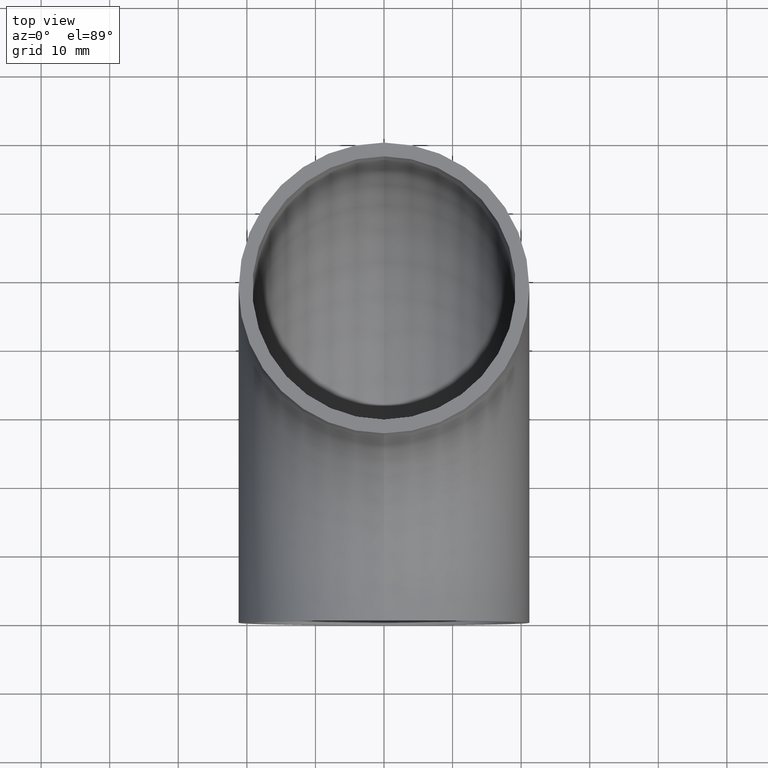
[diagram: clean part render]
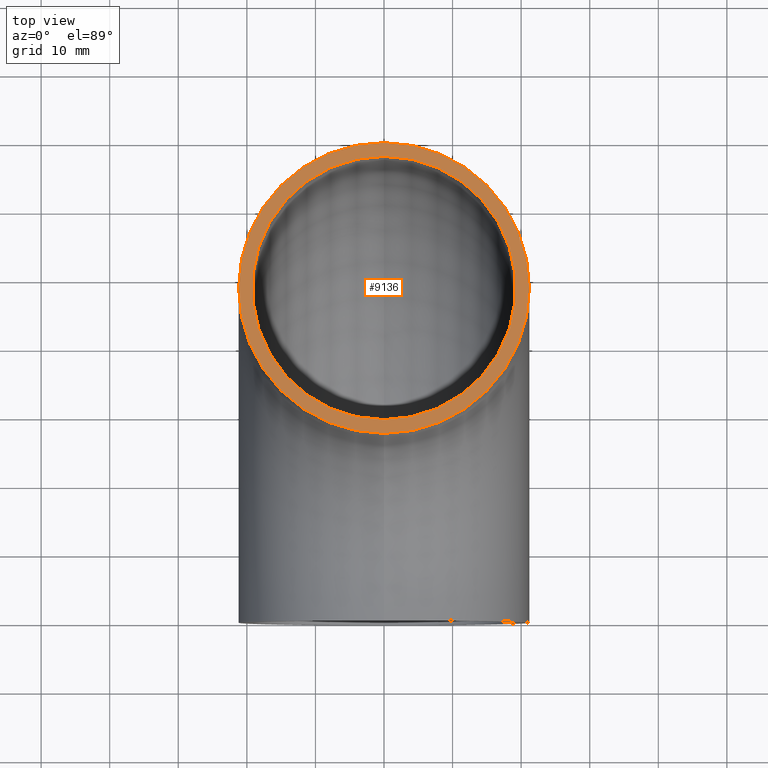
[diagram: same view with one face highlighted and labeled with its STEP entity id]
A machine part, top view. The second image highlights one B-rep face of the part: STEP entity #9136.
In plain terms, the highlighted planar face has unit normal (0, 0, 1).
Its self-contained STEP definition (entity closure, byte-faithful):
#293 = CARTESIAN_POINT ( 'NONE',  ( 0.0000000000000000000, 48.00000000000000000, -2.939152317953647900E-015 ) ) ;
#349 = DIRECTION ( 'NONE',  ( 0.0000000000000000000, -1.000000000000000000, 6.123233995736766000E-017 ) ) ;
#376 = CARTESIAN_POINT ( 'NONE',  ( 0.0000000000000000000, 48.00000000000000000, -2.939152317953647900E-015 ) ) ;
#416 = VERTEX_POINT ( 'NONE', #2622 ) ;
#440 = EDGE_LOOP ( 'NONE', ( #3813, #1794 ) ) ;
#707 = FACE_BOUND ( 'NONE', #11290, .T. ) ;
#1494 = VERTEX_POINT ( 'NONE', #4113 ) ;
#1566 = AXIS2_PLACEMENT_3D ( 'NONE', #293, #9163, #3717 ) ;
#1794 = ORIENTED_EDGE ( 'NONE', *, *, #9662, .T. ) ;
#2234 = AXIS2_PLACEMENT_3D ( 'NONE', #11080, #5670, #349 ) ;
#2401 = CIRCLE ( 'NONE', #10597, 19.20000000000000300 ) ;
#2622 = CARTESIAN_POINT ( 'NONE',  ( 0.0000000000000000000, 26.80000000000000100, -1.641026710857453300E-015 ) ) ;
#2993 = VERTEX_POINT ( 'NONE', #9274 ) ;
#3390 = EDGE_CURVE ( 'NONE', #3609, #1494, #2401, .T. ) ;
#3452 = DIRECTION ( 'NONE',  ( 0.0000000000000000000, -1.000000000000000000, 6.123233995736766000E-017 ) ) ;
#3489 = CARTESIAN_POINT ( 'NONE',  ( 0.0000000000000000000, 48.00000000000000000, -2.939152317953647900E-015 ) ) ;
#3609 = VERTEX_POINT ( 'NONE', #11091 ) ;
#3717 = DIRECTION ( 'NONE',  ( 0.0000000000000000000, -1.000000000000000000, 6.123233995736766000E-017 ) ) ;
#3813 = ORIENTED_EDGE ( 'NONE', *, *, #8654, .T. ) ;
#4069 = DIRECTION ( 'NONE',  ( 0.0000000000000000000, 6.123233995736766000E-017, 1.000000000000000000 ) ) ;
#4113 = CARTESIAN_POINT ( 'NONE',  ( 0.0000000000000000000, 28.80000000000000100, -1.763491390772188500E-015 ) ) ;
#4572 = DIRECTION ( 'NONE',  ( 0.0000000000000000000, -1.000000000000000000, 6.123233995736766000E-017 ) ) ;
#4750 = AXIS2_PLACEMENT_3D ( 'NONE', #376, #4069, #5777 ) ;
#5670 = DIRECTION ( 'NONE',  ( 0.0000000000000000000, 6.123233995736766000E-017, 1.000000000000000000 ) ) ;
#5777 = DIRECTION ( 'NONE',  ( 0.0000000000000000000, -1.000000000000000000, 6.123233995736766000E-017 ) ) ;
#6105 = CIRCLE ( 'NONE', #1566, 21.19999999999999900 ) ;
#6370 = FACE_OUTER_BOUND ( 'NONE', #440, .T. ) ;
#7808 = AXIS2_PLACEMENT_3D ( 'NONE', #8907, #8943, #4572 ) ;
#7859 = DIRECTION ( 'NONE',  ( 0.0000000000000000000, 6.123233995736766000E-017, 1.000000000000000000 ) ) ;
#8654 = EDGE_CURVE ( 'NONE', #416, #2993, #6105, .T. ) ;
#8702 = EDGE_CURVE ( 'NONE', #1494, #3609, #10410, .T. ) ;
#8907 = CARTESIAN_POINT ( 'NONE',  ( 0.0000000000000000000, 48.00000000000000000, -2.939152317953647900E-015 ) ) ;
#8943 = DIRECTION ( 'NONE',  ( 0.0000000000000000000, 6.123233995736766000E-017, 1.000000000000000000 ) ) ;
#9136 = ADVANCED_FACE ( 'NONE', ( #707, #6370 ), #10646, .T. ) ;
#9163 = DIRECTION ( 'NONE',  ( 0.0000000000000000000, 6.123233995736766000E-017, 1.000000000000000000 ) ) ;
#9274 = CARTESIAN_POINT ( 'NONE',  ( 0.0000000000000000000, 69.20000000000000300, -4.237277925049843100E-015 ) ) ;
#9662 = EDGE_CURVE ( 'NONE', #2993, #416, #10532, .T. ) ;
#10410 = CIRCLE ( 'NONE', #4750, 19.20000000000000300 ) ;
#10532 = CIRCLE ( 'NONE', #2234, 21.19999999999999900 ) ;
#10597 = AXIS2_PLACEMENT_3D ( 'NONE', #3489, #7859, #3452 ) ;
#10646 = PLANE ( 'NONE',  #7808 ) ;
#10786 = ORIENTED_EDGE ( 'NONE', *, *, #3390, .F. ) ;
#11080 = CARTESIAN_POINT ( 'NONE',  ( 0.0000000000000000000, 48.00000000000000000, -2.939152317953647900E-015 ) ) ;
#11091 = CARTESIAN_POINT ( 'NONE',  ( 0.0000000000000000000, 67.20000000000000300, -4.114813245135107100E-015 ) ) ;
#11290 = EDGE_LOOP ( 'NONE', ( #11465, #10786 ) ) ;
#11465 = ORIENTED_EDGE ( 'NONE', *, *, #8702, .F. ) ;